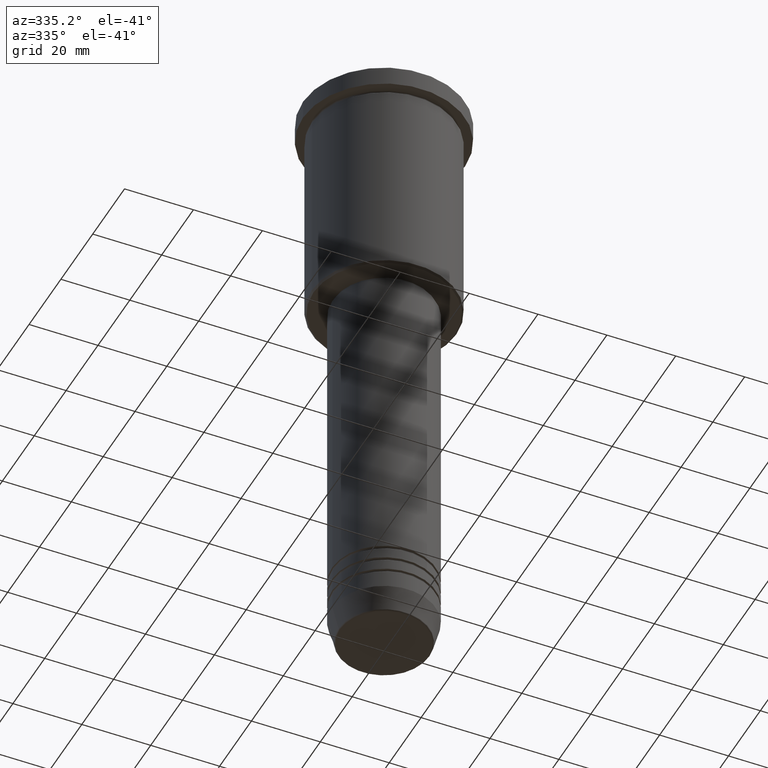
[diagram: clean part render]
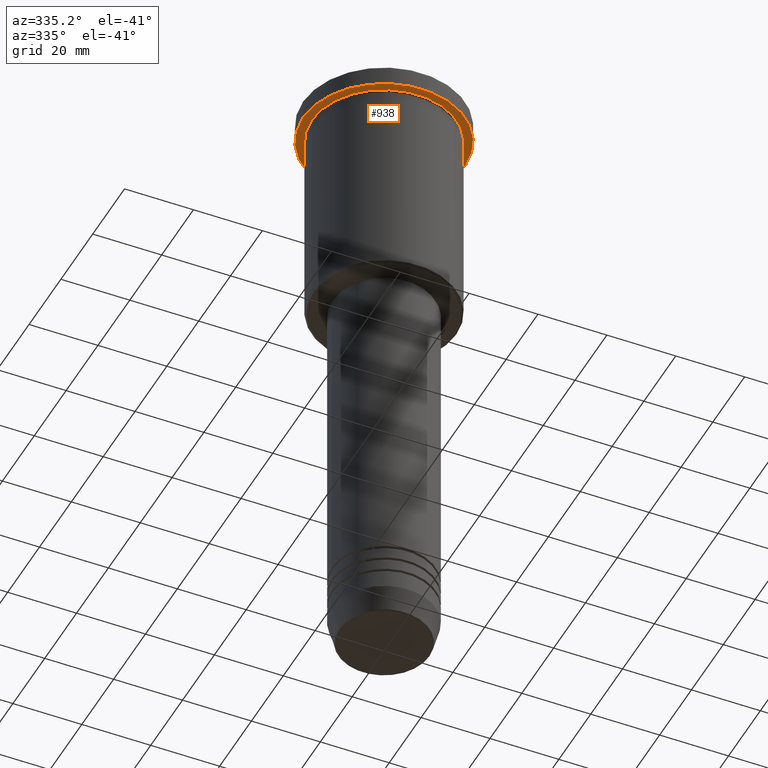
[diagram: same view with one face highlighted and labeled with its STEP entity id]
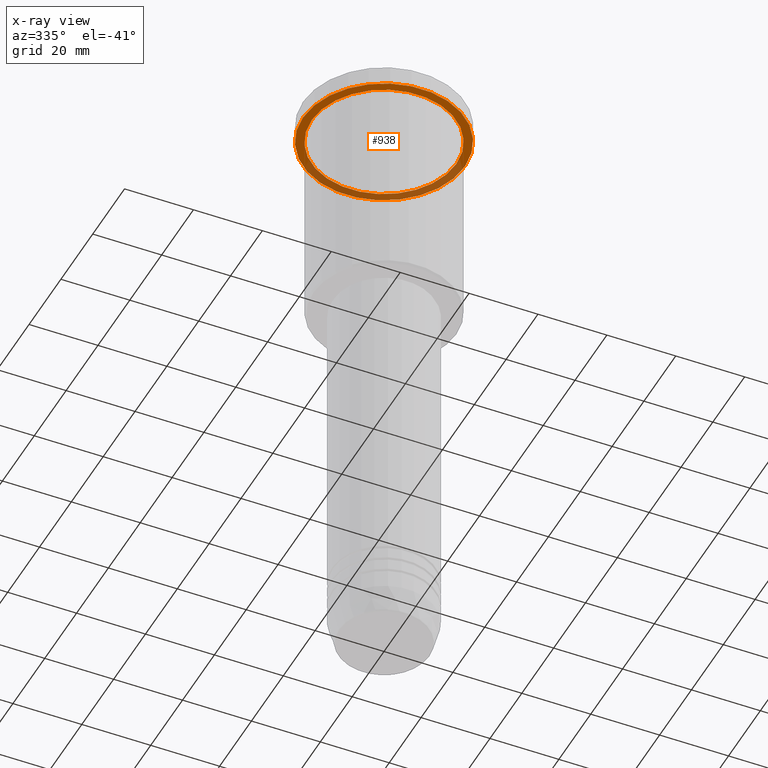
[diagram: x-ray of the same camera — body ghosted, the highlighted face saturated]
A machine part, auxiliary view. The second image highlights one B-rep face of the part: STEP entity #938.
The next image is the same camera in x-ray: the body ghosted, the highlighted face saturated — about 37% of this face is hidden behind the body in this view.
In plain terms, the highlighted planar face has unit normal (0, 0, -1).
Its self-contained STEP definition (entity closure, byte-faithful):
#54 = FACE_OUTER_BOUND ( 'NONE', #1082, .T. ) ;
#117 = ORIENTED_EDGE ( 'NONE', *, *, #700, .T. ) ;
#157 = CIRCLE ( 'NONE', #1061, 23.50000000000000000 ) ;
#199 = CARTESIAN_POINT ( 'NONE',  ( 0.000000000000000000, 0.000000000000000000, -5.999999999999993783 ) ) ;
#209 = AXIS2_PLACEMENT_3D ( 'NONE', #994, #619, #986 ) ;
#224 = EDGE_CURVE ( 'NONE', #741, #255, #1094, .T. ) ;
#239 = CARTESIAN_POINT ( 'NONE',  ( 0.000000000000000000, 0.000000000000000000, -5.999999999999993783 ) ) ;
#255 = VERTEX_POINT ( 'NONE', #1133 ) ;
#274 = ORIENTED_EDGE ( 'NONE', *, *, #224, .T. ) ;
#279 = DIRECTION ( 'NONE',  ( 1.000000000000000000, 0.000000000000000000, 0.000000000000000000 ) ) ;
#316 = CIRCLE ( 'NONE', #209, 21.00000000000000000 ) ;
#319 = DIRECTION ( 'NONE',  ( -0.000000000000000000, -0.000000000000000000, 1.000000000000000000 ) ) ;
#371 = EDGE_CURVE ( 'NONE', #904, #951, #157, .T. ) ;
#409 = DIRECTION ( 'NONE',  ( -1.000000000000000000, 0.000000000000000000, 0.000000000000000000 ) ) ;
#422 = CIRCLE ( 'NONE', #789, 23.50000000000000000 ) ;
#508 = DIRECTION ( 'NONE',  ( -0.000000000000000000, -0.000000000000000000, 1.000000000000000000 ) ) ;
#520 = CARTESIAN_POINT ( 'NONE',  ( -23.50000000000000000, 2.877919977996280320E-15, -5.999999999999993783 ) ) ;
#566 = PLANE ( 'NONE',  #915 ) ;
#570 = FACE_BOUND ( 'NONE', #1033, .T. ) ;
#619 = DIRECTION ( 'NONE',  ( -0.000000000000000000, -0.000000000000000000, 1.000000000000000000 ) ) ;
#657 = AXIS2_PLACEMENT_3D ( 'NONE', #701, #319, #409 ) ;
#700 = EDGE_CURVE ( 'NONE', #255, #741, #316, .T. ) ;
#701 = CARTESIAN_POINT ( 'NONE',  ( 0.000000000000000000, 0.000000000000000000, -5.999999999999993783 ) ) ;
#741 = VERTEX_POINT ( 'NONE', #905 ) ;
#771 = DIRECTION ( 'NONE',  ( -1.000000000000000000, 0.000000000000000000, -0.000000000000000000 ) ) ;
#789 = AXIS2_PLACEMENT_3D ( 'NONE', #239, #508, #891 ) ;
#801 = CARTESIAN_POINT ( 'NONE',  ( 23.50000000000000000, 0.000000000000000000, -5.999999999999993783 ) ) ;
#823 = ORIENTED_EDGE ( 'NONE', *, *, #371, .F. ) ;
#891 = DIRECTION ( 'NONE',  ( 1.000000000000000000, 0.000000000000000000, 0.000000000000000000 ) ) ;
#904 = VERTEX_POINT ( 'NONE', #520 ) ;
#905 = CARTESIAN_POINT ( 'NONE',  ( 21.00000000000000000, 2.571758278209441661E-15, -5.999999999999992895 ) ) ;
#915 = AXIS2_PLACEMENT_3D ( 'NONE', #1030, #1011, #771 ) ;
#930 = DIRECTION ( 'NONE',  ( -0.000000000000000000, -0.000000000000000000, 1.000000000000000000 ) ) ;
#938 = ADVANCED_FACE ( 'NONE', ( #570, #54 ), #566, .T. ) ;
#949 = EDGE_CURVE ( 'NONE', #951, #904, #422, .T. ) ;
#951 = VERTEX_POINT ( 'NONE', #801 ) ;
#986 = DIRECTION ( 'NONE',  ( -1.000000000000000000, 0.000000000000000000, 0.000000000000000000 ) ) ;
#994 = CARTESIAN_POINT ( 'NONE',  ( 0.000000000000000000, 0.000000000000000000, -5.999999999999993783 ) ) ;
#1011 = DIRECTION ( 'NONE',  ( 0.000000000000000000, 0.000000000000000000, -1.000000000000000000 ) ) ;
#1030 = CARTESIAN_POINT ( 'NONE',  ( 0.000000000000000000, 23.50000000000000000, -5.999999999999993783 ) ) ;
#1033 = EDGE_LOOP ( 'NONE', ( #117, #274 ) ) ;
#1061 = AXIS2_PLACEMENT_3D ( 'NONE', #199, #930, #279 ) ;
#1082 = EDGE_LOOP ( 'NONE', ( #1113, #823 ) ) ;
#1094 = CIRCLE ( 'NONE', #657, 21.00000000000000000 ) ;
#1113 = ORIENTED_EDGE ( 'NONE', *, *, #949, .F. ) ;
#1133 = CARTESIAN_POINT ( 'NONE',  ( -21.00000000000000000, 0.000000000000000000, -5.999999999999992895 ) ) ;